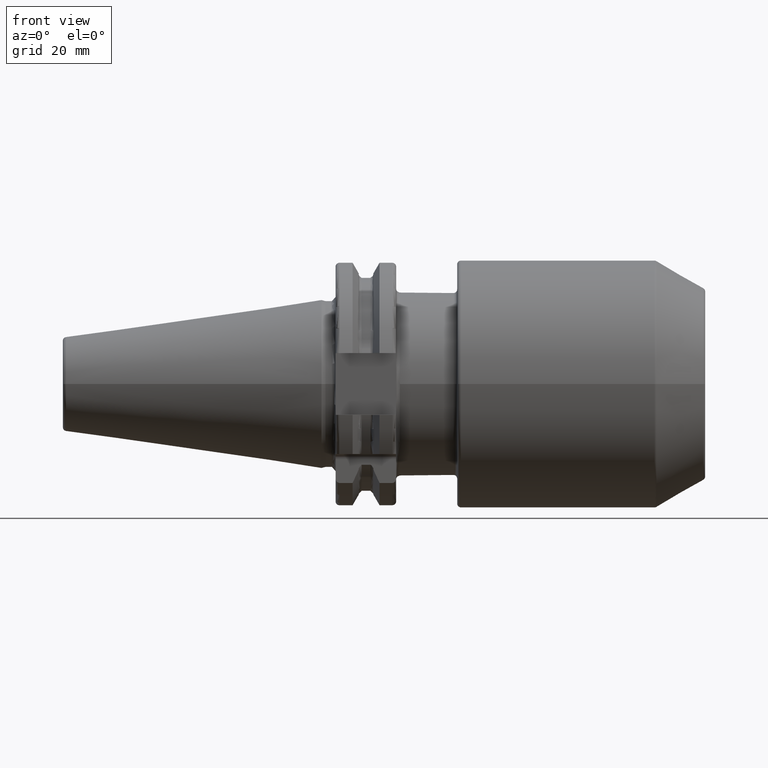
[diagram: clean part render]
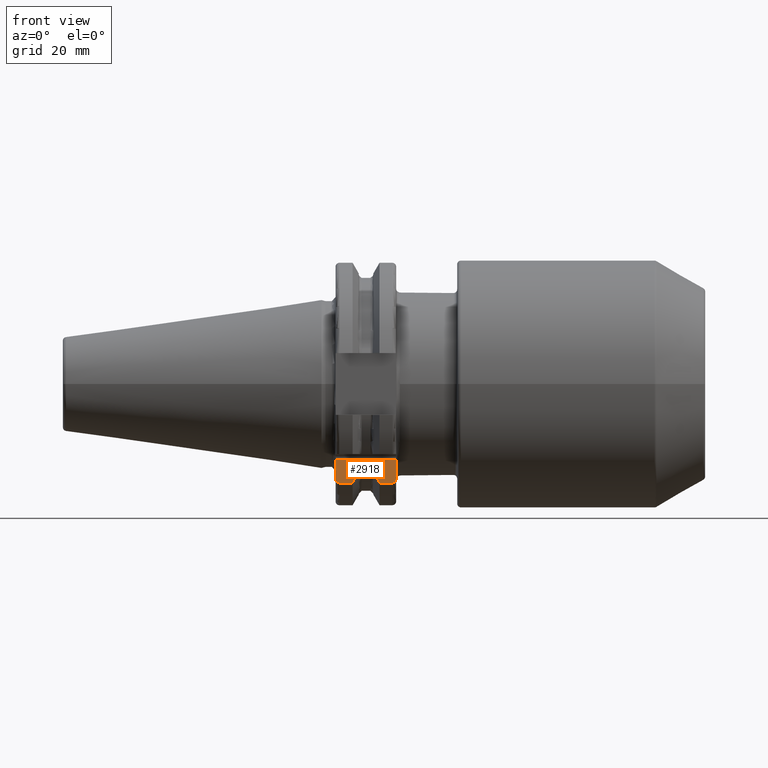
[diagram: same view with one face highlighted and labeled with its STEP entity id]
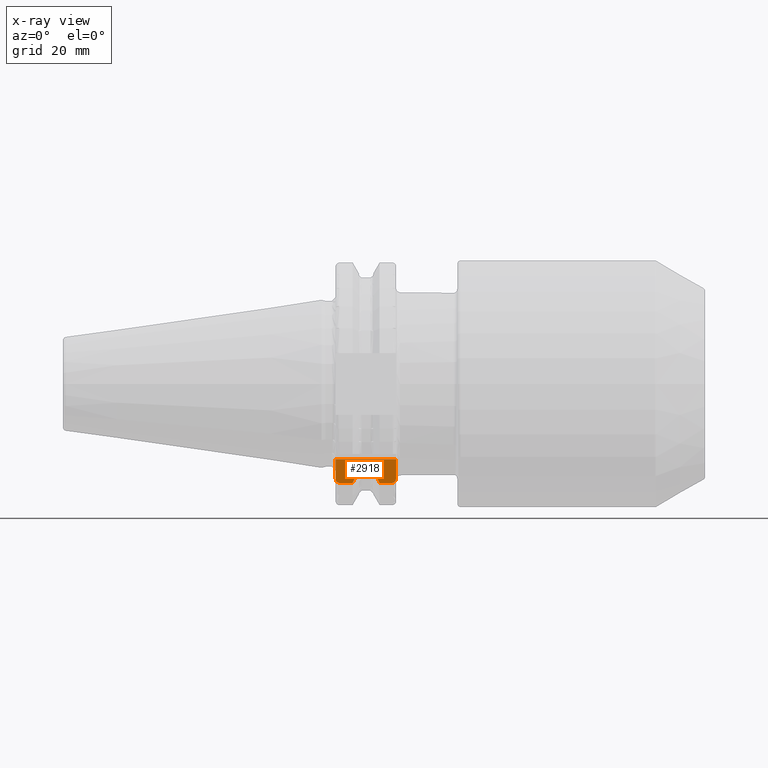
[diagram: x-ray of the same camera — body ghosted, the highlighted face saturated]
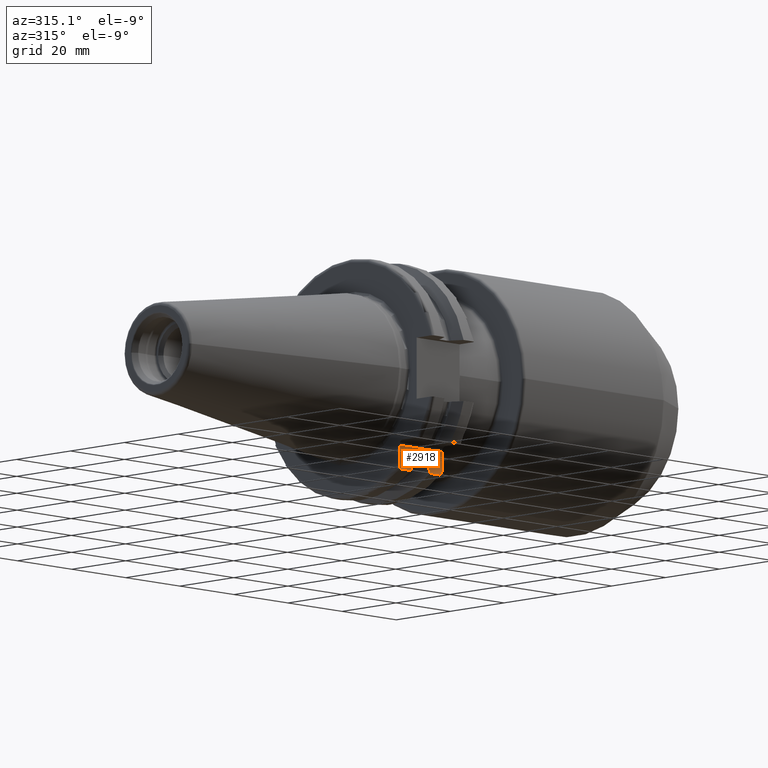
[diagram: same view with one face highlighted and labeled with its STEP entity id]
A machine part, front view. The second image highlights one B-rep face of the part: STEP entity #2918.
The next image is the same camera in x-ray: the body ghosted, the highlighted face saturated — about 0% of this face is hidden behind the body in this view.
A second angle (auxiliary view) of the same face is appended — the face is thin or edge-on in the first view.
In plain terms, the highlighted planar face has unit normal (0, 1, 0).
Its self-contained STEP definition (entity closure, byte-faithful):
#610=DIRECTION('',(0.E0,0.E0,1.E0));
#611=VECTOR('',#610,4.990259339464E0);
#612=CARTESIAN_POINT('',(1.905E1,-1.835E1,-2.469025933946E1));
#613=LINE('',#612,#611);
#665=DIRECTION('',(0.E0,0.E0,1.E0));
#666=VECTOR('',#665,2.754068371193E-1);
#667=CARTESIAN_POINT('',(9.2625E0,-1.835E1,-2.240773613162E1));
#668=LINE('',#667,#666);
#771=DIRECTION('',(0.E0,0.E0,1.E0));
#772=VECTOR('',#771,2.754068371193E-1);
#773=CARTESIAN_POINT('',(1.30875E1,-1.835E1,-2.240773613162E1));
#774=LINE('',#773,#772);
#887=DIRECTION('',(0.E0,0.E0,1.E0));
#888=VECTOR('',#887,4.990259339464E0);
#889=CARTESIAN_POINT('',(3.2E0,-1.835E1,-2.469025933946E1));
#890=LINE('',#889,#888);
#948=DIRECTION('',(-1.E0,0.E0,0.E0));
#949=VECTOR('',#948,1.585E1);
#950=CARTESIAN_POINT('',(1.905E1,-1.835E1,-1.97E1));
#951=LINE('',#950,#949);
#963=CARTESIAN_POINT('',(1.905E1,-1.835E1,-2.469025933946E1));
#964=CARTESIAN_POINT('',(1.905E1,-1.835E1,-2.477827489148E1));
#965=CARTESIAN_POINT('',(1.903550352933E1,-1.835E1,-2.495194722121E1));
#966=CARTESIAN_POINT('',(1.896629632127E1,-1.835E1,-2.521302960336E1));
#967=CARTESIAN_POINT('',(1.884964259244E1,-1.835E1,-2.545175760021E1));
#968=CARTESIAN_POINT('',(1.869337393206E1,-1.835E1,-2.565125079223E1));
#969=CARTESIAN_POINT('',(1.850440420446E1,-1.835E1,-2.580344847600E1));
#970=CARTESIAN_POINT('',(1.828893233655E1,-1.835E1,-2.590127687802E1));
#971=CARTESIAN_POINT('',(1.813210111876E1,-1.835E1,-2.592554543785E1));
#972=CARTESIAN_POINT('',(1.805E1,-1.835E1,-2.592554543785E1));
#1010=DIRECTION('',(1.E0,0.E0,0.E0));
#1011=VECTOR('',#1010,3.445946479578E0);
#1012=CARTESIAN_POINT('',(4.2E0,-1.835E1,-2.592554543785E1));
#1013=LINE('',#1012,#1011);
#1028=DIRECTION('',(1.E0,0.E0,0.E0));
#1029=VECTOR('',#1028,3.345946479578E0);
#1030=CARTESIAN_POINT('',(1.470405352042E1,-1.835E1,-2.592554543785E1));
#1031=LINE('',#1030,#1029);
#1079=CARTESIAN_POINT('',(4.2E0,-1.835E1,-2.592554543785E1));
#1080=CARTESIAN_POINT('',(4.117978515713E0,-1.835E1,-2.592554543785E1));
#1081=CARTESIAN_POINT('',(3.961246891048E0,-1.835E1,-2.590134188482E1));
#1082=CARTESIAN_POINT('',(3.745539786217E0,-1.835E1,-2.580342617652E1));
#1083=CARTESIAN_POINT('',(3.556578831610E0,-1.835E1,-2.565121806264E1));
#1084=CARTESIAN_POINT('',(3.400124325915E0,-1.835E1,-2.545142383546E1));
#1085=CARTESIAN_POINT('',(3.283526257188E0,-1.835E1,-2.521253976185E1));
#1086=CARTESIAN_POINT('',(3.214446436835E0,-1.835E1,-2.495157117356E1));
#1087=CARTESIAN_POINT('',(3.2E0,-1.835E1,-2.477812311755E1));
#1088=CARTESIAN_POINT('',(3.2E0,-1.835E1,-2.469025933946E1));
#1129=CARTESIAN_POINT('',(9.2625E0,-1.835E1,-2.240773613162E1));
#1130=CARTESIAN_POINT('',(9.097869015375E0,-1.835E1,-2.277629848758E1));
#1131=CARTESIAN_POINT('',(8.758691179732E0,-1.835E1,-2.352831190146E1));
#1132=CARTESIAN_POINT('',(8.220420735022E0,-1.835E1,-2.469989032362E1));
#1133=CARTESIAN_POINT('',(7.840855578955E0,-1.835E1,-2.551194640168E1));
#1134=CARTESIAN_POINT('',(7.645946479578E0,-1.835E1,-2.592554543785E1));
#1162=CARTESIAN_POINT('',(1.30875E1,-1.835E1,-2.240773613162E1));
#1163=CARTESIAN_POINT('',(1.325213098463E1,-1.835E1,-2.277629848758E1));
#1164=CARTESIAN_POINT('',(1.359130882027E1,-1.835E1,-2.352831190146E1));
#1165=CARTESIAN_POINT('',(1.412957926498E1,-1.835E1,-2.469989032362E1));
#1166=CARTESIAN_POINT('',(1.450914442104E1,-1.835E1,-2.551194640168E1));
#1167=CARTESIAN_POINT('',(1.470405352042E1,-1.835E1,-2.592554543785E1));
#1204=CARTESIAN_POINT('',(1.30875E1,-1.835E1,-2.213232929450E1));
#1205=CARTESIAN_POINT('',(1.30875E1,-1.835E1,-2.206221408282E1));
#1206=CARTESIAN_POINT('',(1.307623234956E1,-1.835E1,-2.192389012956E1));
#1207=CARTESIAN_POINT('',(1.302304002386E1,-1.835E1,-2.171577032079E1));
#1208=CARTESIAN_POINT('',(1.293464596960E1,-1.835E1,-2.152606845134E1));
#1209=CARTESIAN_POINT('',(1.281674247215E1,-1.835E1,-2.136698869001E1));
#1210=CARTESIAN_POINT('',(1.267543530336E1,-1.835E1,-2.124593918272E1));
#1211=CARTESIAN_POINT('',(1.251391277471E1,-1.835E1,-2.116784088975E1));
#1212=CARTESIAN_POINT('',(1.239797666454E1,-1.835E1,-2.114893614346E1));
#1213=CARTESIAN_POINT('',(1.23375E1,-1.835E1,-2.114893614346E1));
#1251=DIRECTION('',(1.E0,0.E0,0.E0));
#1252=VECTOR('',#1251,2.325E0);
#1253=CARTESIAN_POINT('',(1.00125E1,-1.835E1,-2.114893614346E1));
#1254=LINE('',#1253,#1252);
#1284=CARTESIAN_POINT('',(1.00125E1,-1.835E1,-2.114893614346E1));
#1285=CARTESIAN_POINT('',(9.951993698949E0,-1.835E1,-2.114893614346E1));
#1286=CARTESIAN_POINT('',(9.836000286499E0,-1.835E1,-2.116785770514E1));
#1287=CARTESIAN_POINT('',(9.674360365633E0,-1.835E1,-2.124605529531E1));
#1288=CARTESIAN_POINT('',(9.533017193128E0,-1.835E1,-2.136726141392E1));
#1289=CARTESIAN_POINT('',(9.415344880527E0,-1.835E1,-2.152613059545E1));
#1290=CARTESIAN_POINT('',(9.327039810665E0,-1.835E1,-2.171558232438E1));
#1291=CARTESIAN_POINT('',(9.273817984253E0,-1.835E1,-2.192356855291E1));
#1292=CARTESIAN_POINT('',(9.2625E0,-1.835E1,-2.206207271485E1));
#1293=CARTESIAN_POINT('',(9.2625E0,-1.835E1,-2.213232929450E1));
#1663=CARTESIAN_POINT('',(9.2625E0,-1.835E1,-2.240773613162E1));
#1664=CARTESIAN_POINT('',(9.2625E0,-1.835E1,-2.213232929450E1));
#1665=VERTEX_POINT('',#1663);
#1666=VERTEX_POINT('',#1664);
#1691=CARTESIAN_POINT('',(1.30875E1,-1.835E1,-2.240773613162E1));
#1692=CARTESIAN_POINT('',(1.30875E1,-1.835E1,-2.213232929450E1));
#1693=VERTEX_POINT('',#1691);
#1694=VERTEX_POINT('',#1692);
#1756=CARTESIAN_POINT('',(1.00125E1,-1.835E1,-2.114893614346E1));
#1757=VERTEX_POINT('',#1756);
#1758=CARTESIAN_POINT('',(1.23375E1,-1.835E1,-2.114893614346E1));
#1759=VERTEX_POINT('',#1758);
#1764=CARTESIAN_POINT('',(1.905E1,-1.835E1,-2.469025933946E1));
#1765=VERTEX_POINT('',#1764);
#1766=CARTESIAN_POINT('',(1.805E1,-1.835E1,-2.592554543785E1));
#1767=VERTEX_POINT('',#1766);
#1768=CARTESIAN_POINT('',(4.2E0,-1.835E1,-2.592554543785E1));
#1769=VERTEX_POINT('',#1768);
#1770=CARTESIAN_POINT('',(3.2E0,-1.835E1,-2.469025933946E1));
#1771=VERTEX_POINT('',#1770);
#1776=CARTESIAN_POINT('',(1.905E1,-1.835E1,-1.97E1));
#1777=VERTEX_POINT('',#1776);
#1782=CARTESIAN_POINT('',(3.2E0,-1.835E1,-1.97E1));
#1783=VERTEX_POINT('',#1782);
#1811=VERTEX_POINT('',#1167);
#1812=VERTEX_POINT('',#1134);
#2888=CARTESIAN_POINT('',(1.905E1,-1.835E1,-2.835E1));
#2889=DIRECTION('',(0.E0,1.E0,0.E0));
#2890=DIRECTION('',(0.E0,0.E0,1.E0));
#2891=AXIS2_PLACEMENT_3D('',#2888,#2889,#2890);
#2892=PLANE('',#2891);
#2893=ORIENTED_EDGE('',*,*,#2509,.F.);
#2895=ORIENTED_EDGE('',*,*,#2894,.T.);
#2897=ORIENTED_EDGE('',*,*,#2896,.F.);
#2899=ORIENTED_EDGE('',*,*,#2898,.F.);
#2900=ORIENTED_EDGE('',*,*,#2698,.T.);
#2902=ORIENTED_EDGE('',*,*,#2901,.T.);
#2904=ORIENTED_EDGE('',*,*,#2903,.F.);
#2906=ORIENTED_EDGE('',*,*,#2905,.T.);
#2907=ORIENTED_EDGE('',*,*,#2612,.F.);
#2909=ORIENTED_EDGE('',*,*,#2908,.T.);
#2911=ORIENTED_EDGE('',*,*,#2910,.F.);
#2913=ORIENTED_EDGE('',*,*,#2912,.T.);
#2914=ORIENTED_EDGE('',*,*,#2822,.T.);
#2915=ORIENTED_EDGE('',*,*,#2881,.F.);
#2916=EDGE_LOOP('',(#2893,#2895,#2897,#2899,#2900,#2902,#2904,#2906,#2907,#2909,
#2911,#2913,#2914,#2915));
#2917=FACE_OUTER_BOUND('',#2916,.F.);
#2918=ADVANCED_FACE('',(#2917),#2892,.F.);
#973=B_SPLINE_CURVE_WITH_KNOTS('',3,(#963,#964,#965,#966,#967,#968,#969,#970,
#971,#972),.UNSPECIFIED.,.F.,.F.,(4,1,1,1,1,1,1,4),(0.E0,1.428571428571E-1,
2.857142857143E-1,4.285714285714E-1,5.714285714286E-1,7.142857142857E-1,
8.571428571429E-1,1.E0),.UNSPECIFIED.);
#1089=B_SPLINE_CURVE_WITH_KNOTS('',3,(#1079,#1080,#1081,#1082,#1083,#1084,#1085,
#1086,#1087,#1088),.UNSPECIFIED.,.F.,.F.,(4,1,1,1,1,1,1,4),(0.E0,
1.428571428571E-1,2.857142857143E-1,4.285714285714E-1,5.714285714286E-1,
7.142857142857E-1,8.571428571429E-1,1.E0),.UNSPECIFIED.);
#1135=B_SPLINE_CURVE_WITH_KNOTS('',3,(#1129,#1130,#1131,#1132,#1133,#1134),
.UNSPECIFIED.,.F.,.F.,(4,1,1,4),(0.E0,3.333333333333E-1,6.666666666667E-1,1.E0),
.UNSPECIFIED.);
#1168=B_SPLINE_CURVE_WITH_KNOTS('',3,(#1162,#1163,#1164,#1165,#1166,#1167),
.UNSPECIFIED.,.F.,.F.,(4,1,1,4),(0.E0,3.333333333333E-1,6.666666666667E-1,1.E0),
.UNSPECIFIED.);
#1214=B_SPLINE_CURVE_WITH_KNOTS('',3,(#1204,#1205,#1206,#1207,#1208,#1209,#1210,
#1211,#1212,#1213),.UNSPECIFIED.,.F.,.F.,(4,1,1,1,1,1,1,4),(0.E0,
1.428571428571E-1,2.857142857143E-1,4.285714285714E-1,5.714285714286E-1,
7.142857142857E-1,8.571428571429E-1,1.E0),.UNSPECIFIED.);
#1294=B_SPLINE_CURVE_WITH_KNOTS('',3,(#1284,#1285,#1286,#1287,#1288,#1289,#1290,
#1291,#1292,#1293),.UNSPECIFIED.,.F.,.F.,(4,1,1,1,1,1,1,4),(0.E0,
1.428571428571E-1,2.857142857143E-1,4.285714285714E-1,5.714285714286E-1,
7.142857142857E-1,8.571428571429E-1,1.E0),.UNSPECIFIED.);
#2509=EDGE_CURVE('',#1765,#1777,#613,.T.);
#2612=EDGE_CURVE('',#1665,#1666,#668,.T.);
#2698=EDGE_CURVE('',#1693,#1694,#774,.T.);
#2822=EDGE_CURVE('',#1771,#1783,#890,.T.);
#2881=EDGE_CURVE('',#1777,#1783,#951,.T.);
#2894=EDGE_CURVE('',#1765,#1767,#973,.T.);
#2896=EDGE_CURVE('',#1811,#1767,#1031,.T.);
#2898=EDGE_CURVE('',#1693,#1811,#1168,.T.);
#2901=EDGE_CURVE('',#1694,#1759,#1214,.T.);
#2903=EDGE_CURVE('',#1757,#1759,#1254,.T.);
#2905=EDGE_CURVE('',#1757,#1666,#1294,.T.);
#2908=EDGE_CURVE('',#1665,#1812,#1135,.T.);
#2910=EDGE_CURVE('',#1769,#1812,#1013,.T.);
#2912=EDGE_CURVE('',#1769,#1771,#1089,.T.);